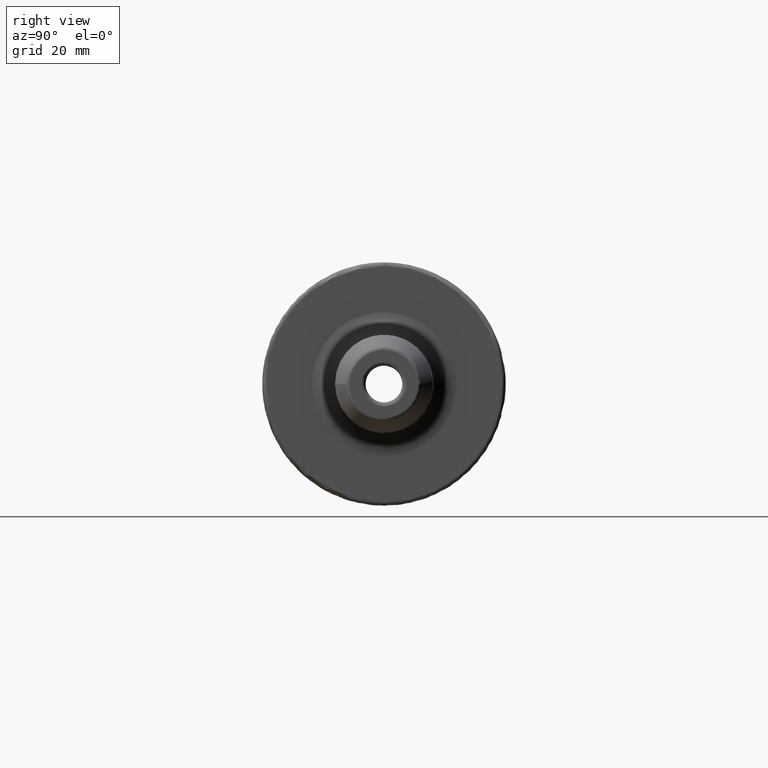
[diagram: clean part render]
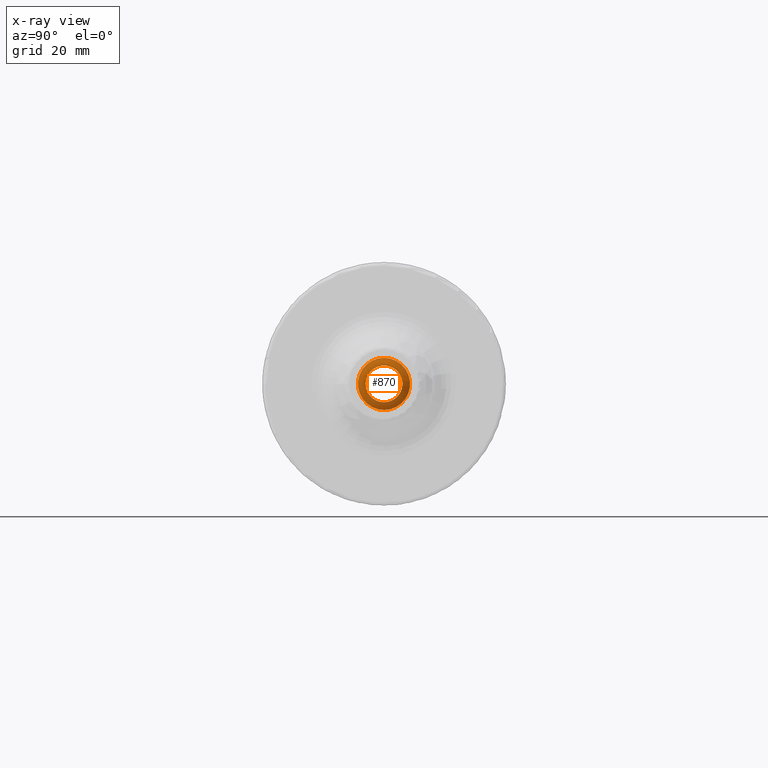
[diagram: x-ray — body ghosted, one internal face saturated and labeled with its STEP entity id]
A machine part, right view, then the same camera in x-ray: the body is ghosted and one INTERNAL B-rep face — a face not visible from any outside direction — is saturated and labeled: STEP entity #870.
In plain terms, the highlighted conical surface has half-angle 59 deg.
Its self-contained STEP definition (entity closure, byte-faithful):
#22=CONICAL_SURFACE('',#967,3.375,1.02974425867665);
#57=LINE('',#1489,#102);
#102=VECTOR('',#1127,3.375);
#192=FACE_OUTER_BOUND('',#248,.T.);
#248=EDGE_LOOP('',(#641,#642,#643,#644,#645));
#296=CIRCLE('',#941,4.76250000000002);
#297=CIRCLE('',#942,4.76250000000002);
#313=CIRCLE('',#968,6.75);
#359=VERTEX_POINT('',#1341);
#360=VERTEX_POINT('',#1343);
#378=VERTEX_POINT('',#1487);
#449=EDGE_CURVE('',#359,#360,#296,.T.);
#450=EDGE_CURVE('',#360,#359,#297,.T.);
#476=EDGE_CURVE('',#378,#378,#313,.T.);
#477=EDGE_CURVE('',#378,#360,#57,.T.);
#641=ORIENTED_EDGE('',*,*,#476,.T.);
#642=ORIENTED_EDGE('',*,*,#477,.T.);
#643=ORIENTED_EDGE('',*,*,#449,.F.);
#644=ORIENTED_EDGE('',*,*,#450,.F.);
#645=ORIENTED_EDGE('',*,*,#477,.F.);
#870=ADVANCED_FACE('',(#192),#22,.F.);
#941=AXIS2_PLACEMENT_3D('',#1344,#1068,#1069);
#942=AXIS2_PLACEMENT_3D('',#1345,#1070,#1071);
#967=AXIS2_PLACEMENT_3D('',#1486,#1123,#1124);
#968=AXIS2_PLACEMENT_3D('',#1488,#1125,#1126);
#1068=DIRECTION('center_axis',(-1.,0.,0.));
#1069=DIRECTION('ref_axis',(0.,1.,0.));
#1070=DIRECTION('center_axis',(-1.,0.,0.));
#1071=DIRECTION('ref_axis',(0.,1.,0.));
#1123=DIRECTION('center_axis',(-1.,0.,0.));
#1124=DIRECTION('ref_axis',(0.,0.,1.));
#1125=DIRECTION('center_axis',(-1.,0.,0.));
#1126=DIRECTION('ref_axis',(0.,0.,1.));
#1127=DIRECTION('',(0.515038074910054,1.04972719113862E-16,0.857167300702112));
#1341=CARTESIAN_POINT('',(65.6442104803173,-4.76250000000002,5.8323803809393E-16));
#1343=CARTESIAN_POINT('',(65.6442104803173,-5.8323803809393E-16,-4.76250000000002));
#1344=CARTESIAN_POINT('Origin',(65.6442104803173,0.,0.));
#1345=CARTESIAN_POINT('Origin',(65.6442104803173,0.,0.));
#1486=CARTESIAN_POINT('Origin',(66.477904589218,0.,0.));
#1487=CARTESIAN_POINT('',(64.45,-8.26636589424464E-16,-6.75));
#1488=CARTESIAN_POINT('Origin',(64.45,0.,0.));
#1489=CARTESIAN_POINT('',(66.477904589218,-4.13318294712232E-16,-3.375));